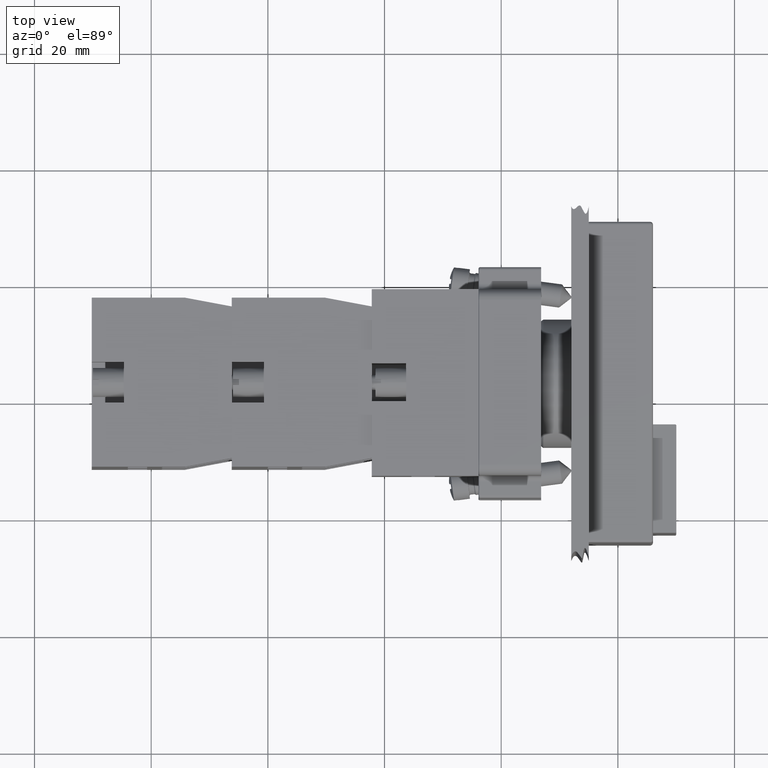
[diagram: clean part render]
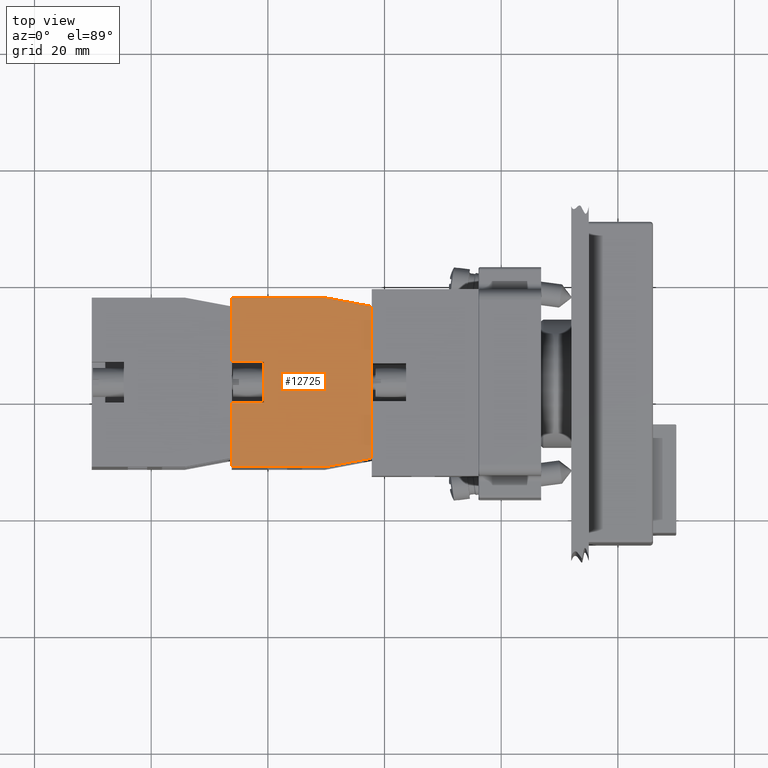
[diagram: same view with one face highlighted and labeled with its STEP entity id]
A machine part, top view. The second image highlights one B-rep face of the part: STEP entity #12725.
In plain terms, the highlighted planar face has unit normal (0, -0, 1).
Its self-contained STEP definition (entity closure, byte-faithful):
#11028=CARTESIAN_POINT('',(-44.936741828918457,7.797073323279626,14.699999999999999));
#11029=VERTEX_POINT('',#11028);
#11036=CARTESIAN_POINT('',(-44.936741828918471,23.797073323279623,14.699999999999999));
#11037=VERTEX_POINT('',#11036);
#11038=CARTESIAN_POINT('',(-44.936741828918457,7.797073323279626,14.699999999999999));
#11039=DIRECTION('',(0.0,1.0,0.0));
#11040=VECTOR('',#11039,15.999999999999996);
#11041=LINE('',#11038,#11040);
#11042=EDGE_CURVE('',#11029,#11037,#11041,.T.);
#11109=CARTESIAN_POINT('',(-43.436741828918457,-0.202926676720380,14.699999999999999));
#11110=VERTEX_POINT('',#11109);
#11117=CARTESIAN_POINT('',(-43.436741828918457,-0.202926676720380,14.699999999999999));
#11118=DIRECTION('',(-0.184288535050185,0.982872186934322,0.0));
#11119=VECTOR('',#11118,8.139410298049860);
#11120=LINE('',#11117,#11119);
#11121=EDGE_CURVE('',#11110,#11029,#11120,.T.);
#11260=CARTESIAN_POINT('',(-17.436741828918457,-0.202926676720377,14.699999999999999));
#11261=VERTEX_POINT('',#11260);
#11268=CARTESIAN_POINT('',(-17.436741828918457,-0.202926676720377,14.699999999999999));
#11269=DIRECTION('',(-1.0,0.0,0.0));
#11270=VECTOR('',#11269,26.0);
#11271=LINE('',#11268,#11270);
#11272=EDGE_CURVE('',#11261,#11110,#11271,.T.);
#11353=CARTESIAN_POINT('',(-15.936741828918466,7.797073323279626,14.699999999999999));
#11354=VERTEX_POINT('',#11353);
#11361=CARTESIAN_POINT('',(-15.936741828918466,7.797073323279626,14.699999999999999));
#11362=DIRECTION('',(-0.184288535050184,-0.982872186934322,0.0));
#11363=VECTOR('',#11362,8.139410298049855);
#11364=LINE('',#11361,#11363);
#11365=EDGE_CURVE('',#11354,#11261,#11364,.T.);
#12460=CARTESIAN_POINT('',(-26.936741828918468,18.297073323279626,14.699999999999999));
#12461=VERTEX_POINT('',#12460);
#12470=CARTESIAN_POINT('',(-26.936741828918468,23.797073323279626,14.699999999999999));
#12471=VERTEX_POINT('',#12470);
#12472=CARTESIAN_POINT('',(-26.936741828918468,23.797073323279626,14.699999999999999));
#12473=DIRECTION('',(0.0,-1.0,0.0));
#12474=VECTOR('',#12473,5.500000000000000);
#12475=LINE('',#12472,#12474);
#12476=EDGE_CURVE('',#12471,#12461,#12475,.T.);
#12531=CARTESIAN_POINT('',(-33.936741828918464,18.297073323279619,14.699999999999999));
#12532=VERTEX_POINT('',#12531);
#12540=CARTESIAN_POINT('',(-33.936741828918464,23.797073323279623,14.699999999999999));
#12541=VERTEX_POINT('',#12540);
#12548=CARTESIAN_POINT('',(-33.936741828918464,18.297073323279619,14.699999999999999));
#12549=DIRECTION('',(0.0,1.0,0.0));
#12550=VECTOR('',#12549,5.500000000000004);
#12551=LINE('',#12548,#12550);
#12552=EDGE_CURVE('',#12532,#12541,#12551,.T.);
#12565=CARTESIAN_POINT('',(-26.936741828918468,18.297073323279626,14.699999999999999));
#12566=DIRECTION('',(-1.0,0.0,0.0));
#12567=VECTOR('',#12566,6.999999999999996);
#12568=LINE('',#12565,#12567);
#12569=EDGE_CURVE('',#12461,#12532,#12568,.T.);
#12585=CARTESIAN_POINT('',(-15.936741828918466,23.797073323279626,14.699999999999999));
#12586=VERTEX_POINT('',#12585);
#12587=CARTESIAN_POINT('',(-26.936741828918468,23.797073323279626,14.699999999999999));
#12588=DIRECTION('',(1.0,0.0,0.0));
#12589=VECTOR('',#12588,11.000000000000002);
#12590=LINE('',#12587,#12589);
#12591=EDGE_CURVE('',#12471,#12586,#12590,.T.);
#12608=CARTESIAN_POINT('',(-44.936741828918471,23.797073323279623,14.699999999999999));
#12609=DIRECTION('',(1.0,0.0,0.0));
#12610=VECTOR('',#12609,11.000000000000007);
#12611=LINE('',#12608,#12610);
#12612=EDGE_CURVE('',#11037,#12541,#12611,.T.);
#12656=CARTESIAN_POINT('',(-15.936741828918466,23.797073323279626,14.699999999999999));
#12657=DIRECTION('',(0.0,-1.0,0.0));
#12658=VECTOR('',#12657,16.0);
#12659=LINE('',#12656,#12658);
#12660=EDGE_CURVE('',#12586,#11354,#12659,.T.);
#12708=CARTESIAN_POINT('',(-30.436741828918457,12.124046801833057,14.699999999999999));
#12709=DIRECTION('',(0.0,0.0,1.0));
#12710=DIRECTION('',(1.0,0.0,0.0));
#12711=AXIS2_PLACEMENT_3D('',#12708,#12709,#12710);
#12712=PLANE('',#12711);
#12713=ORIENTED_EDGE('',*,*,#12552,.T.);
#12714=ORIENTED_EDGE('',*,*,#12612,.F.);
#12715=ORIENTED_EDGE('',*,*,#11042,.F.);
#12716=ORIENTED_EDGE('',*,*,#11121,.F.);
#12717=ORIENTED_EDGE('',*,*,#11272,.F.);
#12718=ORIENTED_EDGE('',*,*,#11365,.F.);
#12719=ORIENTED_EDGE('',*,*,#12660,.F.);
#12720=ORIENTED_EDGE('',*,*,#12591,.F.);
#12721=ORIENTED_EDGE('',*,*,#12476,.T.);
#12722=ORIENTED_EDGE('',*,*,#12569,.T.);
#12723=EDGE_LOOP('',(#12713,#12714,#12715,#12716,#12717,#12718,#12719,#12720,#12721,#12722));
#12724=FACE_OUTER_BOUND('',#12723,.T.);
#12725=ADVANCED_FACE('',(#12724),#12712,.T.);